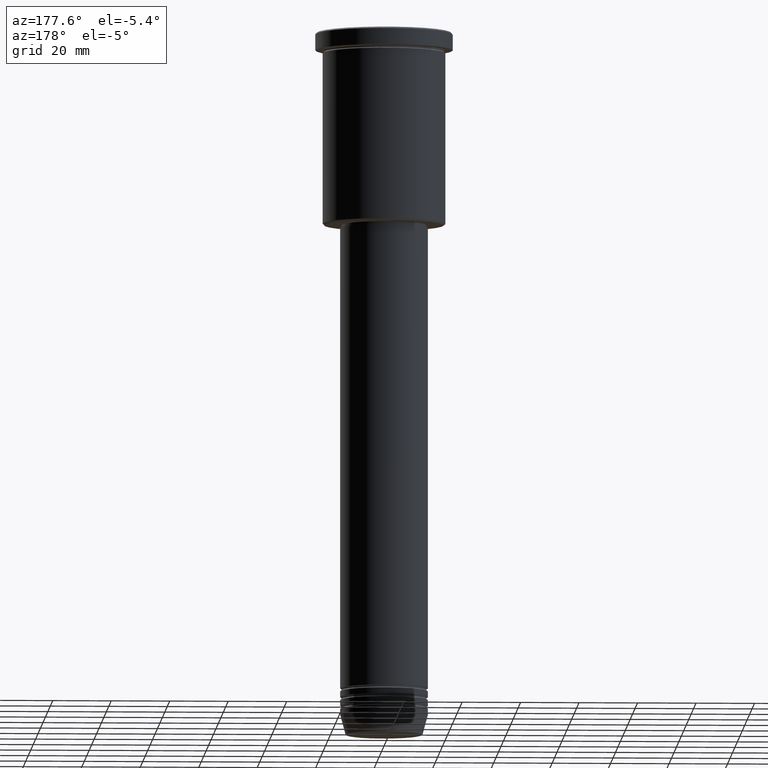
[diagram: clean part render]
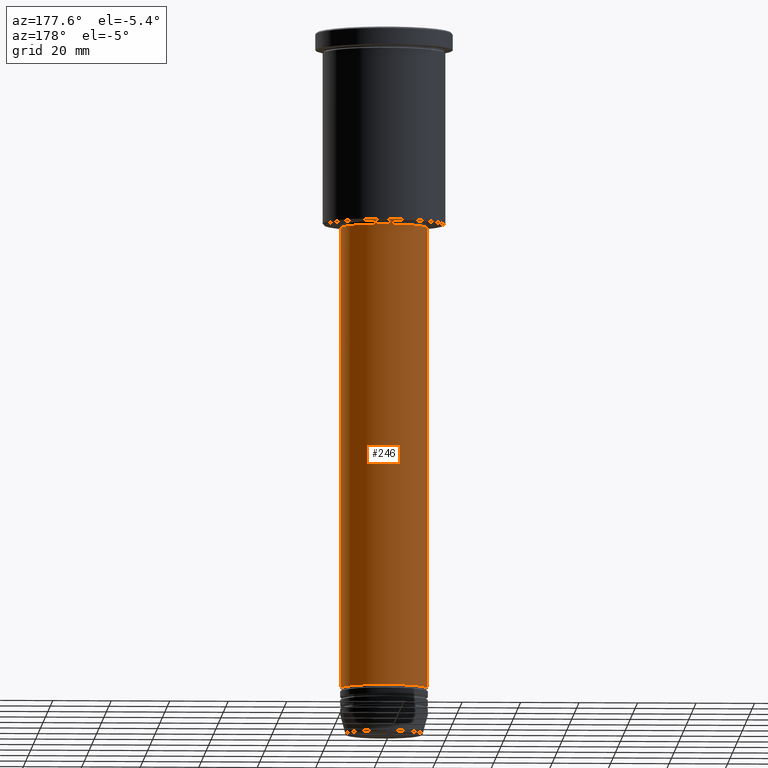
[diagram: same view with one face highlighted and labeled with its STEP entity id]
A machine part, auxiliary view. The second image highlights one B-rep face of the part: STEP entity #246.
In plain terms, the highlighted cylindrical surface (partial cylindrical patch) has radius 15 mm, axis along (-0, -0, 1).
Its self-contained STEP definition (entity closure, byte-faithful):
#36 = DIRECTION ( 'NONE',  ( -0.000000000000000000, -0.000000000000000000, 1.000000000000000000 ) ) ;
#41 = EDGE_CURVE ( 'NONE', #874, #217, #576, .T. ) ;
#88 = ORIENTED_EDGE ( 'NONE', *, *, #644, .T. ) ;
#106 = CARTESIAN_POINT ( 'NONE',  ( 0.000000000000000000, 0.000000000000000000, -224.9999999999999716 ) ) ;
#128 = LINE ( 'NONE', #296, #310 ) ;
#130 = DIRECTION ( 'NONE',  ( -0.000000000000000000, -0.000000000000000000, 1.000000000000000000 ) ) ;
#141 = CYLINDRICAL_SURFACE ( 'NONE', #257, 15.00000000000000000 ) ;
#172 = DIRECTION ( 'NONE',  ( 1.000000000000000000, 0.000000000000000000, 0.000000000000000000 ) ) ;
#197 = DIRECTION ( 'NONE',  ( -0.000000000000000000, -0.000000000000000000, 1.000000000000000000 ) ) ;
#217 = VERTEX_POINT ( 'NONE', #693 ) ;
#224 = AXIS2_PLACEMENT_3D ( 'NONE', #974, #526, #172 ) ;
#246 = ADVANCED_FACE ( 'NONE', ( #1151 ), #141, .T. ) ;
#257 = AXIS2_PLACEMENT_3D ( 'NONE', #299, #399, #660 ) ;
#296 = CARTESIAN_POINT ( 'NONE',  ( -15.00000000000000000, 1.836970198721029589E-15, 0.000000000000000000 ) ) ;
#299 = CARTESIAN_POINT ( 'NONE',  ( 0.000000000000000000, 0.000000000000000000, 0.000000000000000000 ) ) ;
#308 = VECTOR ( 'NONE', #130, 1000.000000000000000 ) ;
#310 = VECTOR ( 'NONE', #36, 1000.000000000000000 ) ;
#393 = AXIS2_PLACEMENT_3D ( 'NONE', #106, #197, #1126 ) ;
#399 = DIRECTION ( 'NONE',  ( -0.000000000000000000, -0.000000000000000000, 1.000000000000000000 ) ) ;
#526 = DIRECTION ( 'NONE',  ( -0.000000000000000000, -0.000000000000000000, 1.000000000000000000 ) ) ;
#537 = VERTEX_POINT ( 'NONE', #649 ) ;
#569 = CARTESIAN_POINT ( 'NONE',  ( -15.00000000000000000, 1.836970198721029589E-15, -67.00000000000000000 ) ) ;
#571 = EDGE_LOOP ( 'NONE', ( #881, #88, #1032, #736 ) ) ;
#576 = LINE ( 'NONE', #1026, #308 ) ;
#644 = EDGE_CURVE ( 'NONE', #537, #1003, #128, .T. ) ;
#649 = CARTESIAN_POINT ( 'NONE',  ( -15.00000000000000000, 1.836970198721029589E-15, -224.9999999999999716 ) ) ;
#660 = DIRECTION ( 'NONE',  ( 1.000000000000000000, 0.000000000000000000, 0.000000000000000000 ) ) ;
#693 = CARTESIAN_POINT ( 'NONE',  ( 15.00000000000000000, 0.000000000000000000, -67.00000000000000000 ) ) ;
#736 = ORIENTED_EDGE ( 'NONE', *, *, #41, .F. ) ;
#773 = CIRCLE ( 'NONE', #224, 15.00000000000000000 ) ;
#817 = CARTESIAN_POINT ( 'NONE',  ( 15.00000000000000000, 0.000000000000000000, -224.9999999999999716 ) ) ;
#868 = EDGE_CURVE ( 'NONE', #217, #1003, #773, .T. ) ;
#874 = VERTEX_POINT ( 'NONE', #817 ) ;
#881 = ORIENTED_EDGE ( 'NONE', *, *, #1055, .T. ) ;
#974 = CARTESIAN_POINT ( 'NONE',  ( 0.000000000000000000, 0.000000000000000000, -67.00000000000000000 ) ) ;
#1003 = VERTEX_POINT ( 'NONE', #569 ) ;
#1026 = CARTESIAN_POINT ( 'NONE',  ( 15.00000000000000000, 0.000000000000000000, 0.000000000000000000 ) ) ;
#1032 = ORIENTED_EDGE ( 'NONE', *, *, #868, .F. ) ;
#1055 = EDGE_CURVE ( 'NONE', #874, #537, #1139, .T. ) ;
#1126 = DIRECTION ( 'NONE',  ( 1.000000000000000000, 0.000000000000000000, 0.000000000000000000 ) ) ;
#1139 = CIRCLE ( 'NONE', #393, 15.00000000000000000 ) ;
#1151 = FACE_OUTER_BOUND ( 'NONE', #571, .T. ) ;